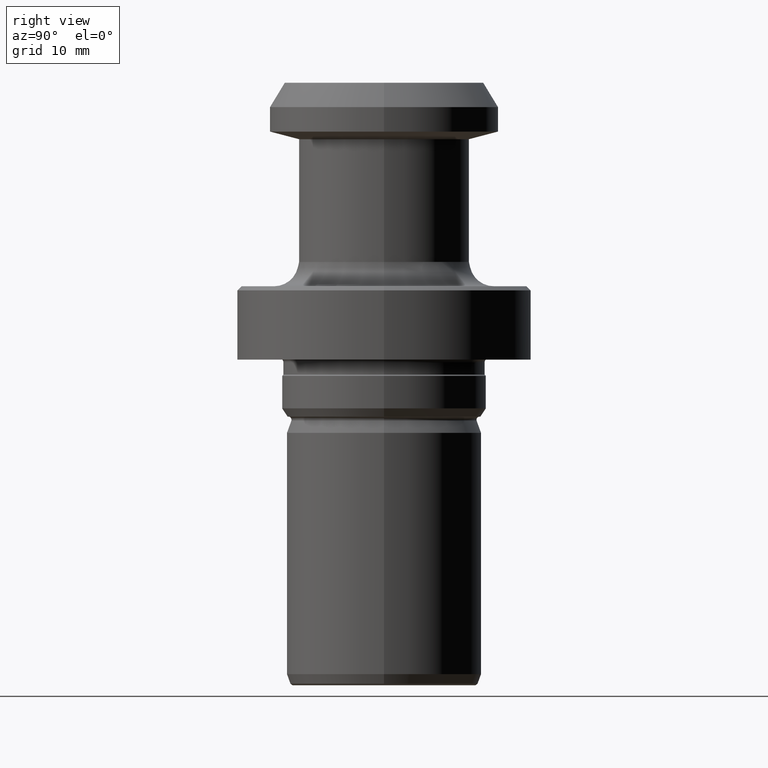
[diagram: clean part render]
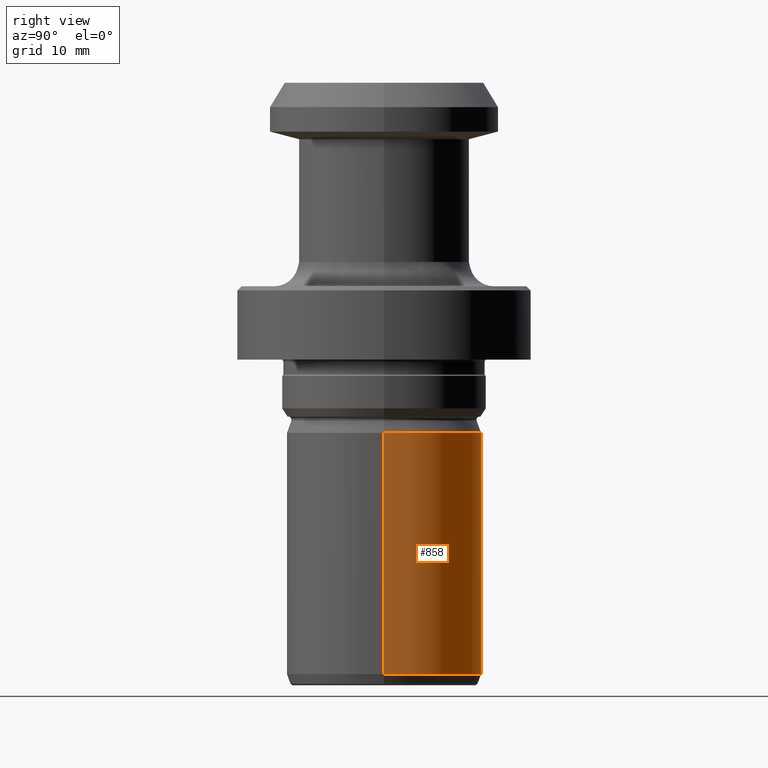
[diagram: same view with one face highlighted and labeled with its STEP entity id]
A machine part, right view. The second image highlights one B-rep face of the part: STEP entity #858.
In plain terms, the highlighted cylindrical surface (partial cylindrical patch) has radius 12 mm, axis along (-0, -0, 1).
Its self-contained STEP definition (entity closure, byte-faithful):
#35 = EDGE_LOOP ( 'NONE', ( #513, #763, #452, #1078 ) ) ;
#79 = CARTESIAN_POINT ( 'NONE',  ( 0.0000000000000000000, 0.0000000000000000000, -72.62626129027269400 ) ) ;
#94 = EDGE_CURVE ( 'NONE', #346, #913, #228, .T. ) ;
#118 = FACE_OUTER_BOUND ( 'NONE', #35, .T. ) ;
#149 = AXIS2_PLACEMENT_3D ( 'NONE', #809, #269, #627 ) ;
#171 = DIRECTION ( 'NONE',  ( 1.000000000000000000, 0.0000000000000000000, 0.0000000000000000000 ) ) ;
#203 = CARTESIAN_POINT ( 'NONE',  ( -12.00000000000000000, 1.469576158976823900E-015, 0.0000000000000000000 ) ) ;
#206 = DIRECTION ( 'NONE',  ( 1.000000000000000000, 0.0000000000000000000, 0.0000000000000000000 ) ) ;
#210 = AXIS2_PLACEMENT_3D ( 'NONE', #79, #721, #171 ) ;
#228 = CIRCLE ( 'NONE', #759, 12.00000000000000000 ) ;
#269 = DIRECTION ( 'NONE',  ( -0.0000000000000000000, -0.0000000000000000000, 1.000000000000000000 ) ) ;
#298 = CARTESIAN_POINT ( 'NONE',  ( 0.0000000000000000000, 0.0000000000000000000, -43.00000000000000000 ) ) ;
#309 = CYLINDRICAL_SURFACE ( 'NONE', #149, 12.00000000000000000 ) ;
#346 = VERTEX_POINT ( 'NONE', #1014 ) ;
#363 = EDGE_CURVE ( 'NONE', #1002, #913, #547, .T. ) ;
#374 = DIRECTION ( 'NONE',  ( -0.0000000000000000000, -0.0000000000000000000, 1.000000000000000000 ) ) ;
#380 = VERTEX_POINT ( 'NONE', #749 ) ;
#384 = VECTOR ( 'NONE', #710, 1000.000000000000000 ) ;
#452 = ORIENTED_EDGE ( 'NONE', *, *, #94, .F. ) ;
#460 = CARTESIAN_POINT ( 'NONE',  ( -12.00000000000000000, 1.469576158976823900E-015, -43.00000000000000000 ) ) ;
#513 = ORIENTED_EDGE ( 'NONE', *, *, #1112, .T. ) ;
#547 = LINE ( 'NONE', #203, #573 ) ;
#573 = VECTOR ( 'NONE', #579, 1000.000000000000000 ) ;
#579 = DIRECTION ( 'NONE',  ( -0.0000000000000000000, -0.0000000000000000000, 1.000000000000000000 ) ) ;
#627 = DIRECTION ( 'NONE',  ( 1.000000000000000000, 0.0000000000000000000, 0.0000000000000000000 ) ) ;
#653 = CIRCLE ( 'NONE', #210, 12.00000000000000000 ) ;
#710 = DIRECTION ( 'NONE',  ( -0.0000000000000000000, -0.0000000000000000000, 1.000000000000000000 ) ) ;
#721 = DIRECTION ( 'NONE',  ( -0.0000000000000000000, -0.0000000000000000000, 1.000000000000000000 ) ) ;
#749 = CARTESIAN_POINT ( 'NONE',  ( 12.00000000000000000, 0.0000000000000000000, -72.62626129027269400 ) ) ;
#759 = AXIS2_PLACEMENT_3D ( 'NONE', #298, #374, #206 ) ;
#763 = ORIENTED_EDGE ( 'NONE', *, *, #363, .T. ) ;
#809 = CARTESIAN_POINT ( 'NONE',  ( 0.0000000000000000000, 0.0000000000000000000, 0.0000000000000000000 ) ) ;
#821 = CARTESIAN_POINT ( 'NONE',  ( -12.00000000000000000, 1.469576158976823900E-015, -72.62626129027269400 ) ) ;
#858 = ADVANCED_FACE ( 'NONE', ( #118 ), #309, .T. ) ;
#913 = VERTEX_POINT ( 'NONE', #460 ) ;
#1002 = VERTEX_POINT ( 'NONE', #821 ) ;
#1014 = CARTESIAN_POINT ( 'NONE',  ( 12.00000000000000000, 0.0000000000000000000, -43.00000000000000000 ) ) ;
#1070 = CARTESIAN_POINT ( 'NONE',  ( 12.00000000000000000, 0.0000000000000000000, 0.0000000000000000000 ) ) ;
#1078 = ORIENTED_EDGE ( 'NONE', *, *, #1121, .F. ) ;
#1100 = LINE ( 'NONE', #1070, #384 ) ;
#1112 = EDGE_CURVE ( 'NONE', #380, #1002, #653, .T. ) ;
#1121 = EDGE_CURVE ( 'NONE', #380, #346, #1100, .T. ) ;